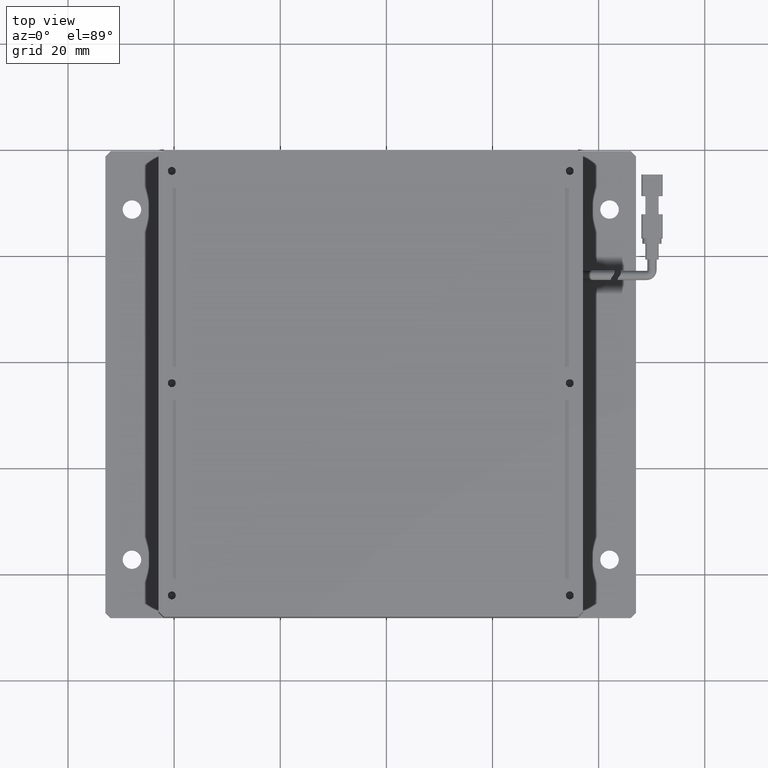
[diagram: clean part render]
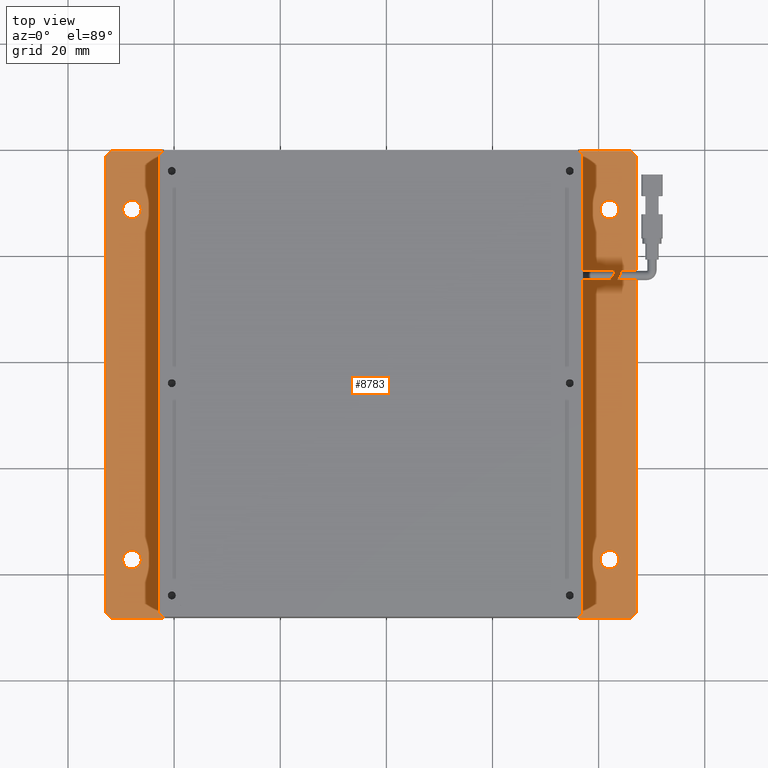
[diagram: same view with one face highlighted and labeled with its STEP entity id]
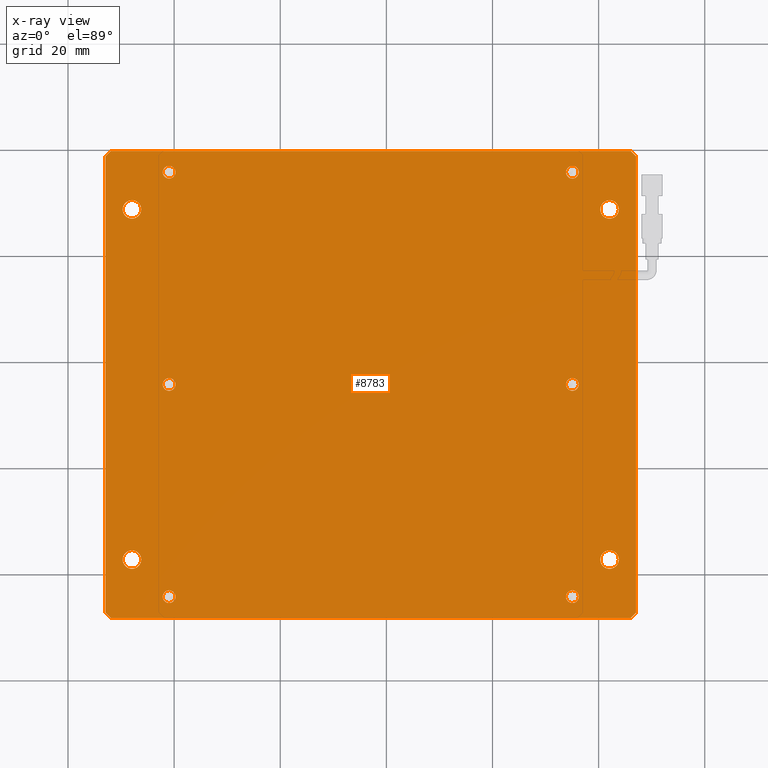
[diagram: x-ray of the same camera — body ghosted, the highlighted face saturated]
A machine part, top view. The second image highlights one B-rep face of the part: STEP entity #8783.
The next image is the same camera in x-ray: the body ghosted, the highlighted face saturated — about 0% of this face is hidden behind the body in this view.
In plain terms, the highlighted planar face has unit normal (0, 0, -1).
Its self-contained STEP definition (entity closure, byte-faithful):
#19 = CARTESIAN_POINT ( 'NONE',  ( -32.94768995799925900, 39.79992363497521500, -4.547577592273199800E-012 ) ) ;
#22 = CARTESIAN_POINT ( 'NONE',  ( 62.05231004200072700, 28.79992363497521500, -4.547577592273199800E-012 ) ) ;
#74 = EDGE_CURVE ( 'NONE', #15469, #9136, #15537, .T. ) ;
#176 = EDGE_CURVE ( 'NONE', #14166, #8460, #12959, .T. ) ;
#235 = EDGE_LOOP ( 'NONE', ( #17595, #10908, #7632, #16304, #5688, #4499, #4505, #15753 ) ) ;
#375 = VERTEX_POINT ( 'NONE', #17222 ) ;
#410 = CARTESIAN_POINT ( 'NONE',  ( 66.05231004200074100, 39.79992363497521500, -4.547577592273199800E-012 ) ) ;
#443 = AXIS2_PLACEMENT_3D ( 'NONE', #6126, #15627, #7523 ) ;
#593 = EDGE_LOOP ( 'NONE', ( #6160, #15576 ) ) ;
#647 = CIRCLE ( 'NONE', #4788, 1.749999999999998000 ) ;
#654 = CARTESIAN_POINT ( 'NONE',  ( -19.74768995799926300, -44.20007636502478500, -4.547577592273199800E-012 ) ) ;
#714 = DIRECTION ( 'NONE',  ( -1.000000000000000000, 0.0000000000000000000, 0.0000000000000000000 ) ) ;
#766 = DIRECTION ( 'NONE',  ( 0.0000000000000000000, 0.0000000000000000000, 1.000000000000000000 ) ) ;
#779 = LINE ( 'NONE', #410, #11408 ) ;
#796 = CARTESIAN_POINT ( 'NONE',  ( 55.05231004200073400, -44.20007636502478500, -4.547577592273199800E-012 ) ) ;
#815 = EDGE_CURVE ( 'NONE', #12420, #8198, #1680, .T. ) ;
#817 = CARTESIAN_POINT ( 'NONE',  ( 53.85231004200074500, -44.20007636502478500, -4.547577592273199800E-012 ) ) ;
#844 = DIRECTION ( 'NONE',  ( -1.000000000000000000, 0.0000000000000000000, -0.0000000000000000000 ) ) ;
#852 = EDGE_LOOP ( 'NONE', ( #1320, #12114 ) ) ;
#909 = VERTEX_POINT ( 'NONE', #7051 ) ;
#982 = CARTESIAN_POINT ( 'NONE',  ( 67.05231004200074100, -47.20007636502479900, -4.547577592273199800E-012 ) ) ;
#1042 = CIRCLE ( 'NONE', #8292, 1.199999999999992600 ) ;
#1134 = LINE ( 'NONE', #2345, #11314 ) ;
#1209 = FACE_BOUND ( 'NONE', #12101, .T. ) ;
#1243 = EDGE_CURVE ( 'NONE', #10454, #2844, #7160, .T. ) ;
#1320 = ORIENTED_EDGE ( 'NONE', *, *, #17116, .F. ) ;
#1324 = AXIS2_PLACEMENT_3D ( 'NONE', #6599, #16094, #7983 ) ;
#1461 = DIRECTION ( 'NONE',  ( -1.000000000000000000, 0.0000000000000000000, 0.0000000000000000000 ) ) ;
#1480 = CARTESIAN_POINT ( 'NONE',  ( -32.94768995799925900, -47.20007636502478500, -4.547577592273199800E-012 ) ) ;
#1637 = FACE_OUTER_BOUND ( 'NONE', #235, .T. ) ;
#1680 = LINE ( 'NONE', #2846, #15859 ) ;
#1691 = DIRECTION ( 'NONE',  ( -1.000000000000000000, 0.0000000000000000000, 0.0000000000000000000 ) ) ;
#1697 = DIRECTION ( 'NONE',  ( -1.000000000000000000, 0.0000000000000000000, 0.0000000000000000000 ) ) ;
#1721 = DIRECTION ( 'NONE',  ( 0.0000000000000000000, 0.0000000000000000000, 1.000000000000000000 ) ) ;
#1747 = DIRECTION ( 'NONE',  ( 0.0000000000000000000, 0.0000000000000000000, 1.000000000000000000 ) ) ;
#1777 = CARTESIAN_POINT ( 'NONE',  ( 55.05231004200073400, -44.20007636502478500, -4.547577592273199800E-012 ) ) ;
#1787 = CARTESIAN_POINT ( 'NONE',  ( -20.94768995799925200, -4.200076365024784800, -4.547577592273199800E-012 ) ) ;
#1899 = AXIS2_PLACEMENT_3D ( 'NONE', #22, #9790, #1461 ) ;
#1965 = AXIS2_PLACEMENT_3D ( 'NONE', #12629, #12564, #12379 ) ;
#2037 = EDGE_CURVE ( 'NONE', #12151, #3938, #10089, .T. ) ;
#2045 = EDGE_CURVE ( 'NONE', #909, #14804, #2699, .T. ) ;
#2056 = FACE_BOUND ( 'NONE', #2821, .T. ) ;
#2100 = VECTOR ( 'NONE', #7319, 1000.000000000000000 ) ;
#2105 = VERTEX_POINT ( 'NONE', #10835 ) ;
#2152 = CARTESIAN_POINT ( 'NONE',  ( 62.05231004200072700, -37.20007636502477100, -4.547577592273199800E-012 ) ) ;
#2183 = ORIENTED_EDGE ( 'NONE', *, *, #2742, .F. ) ;
#2224 = DIRECTION ( 'NONE',  ( 0.7071067811865512400, 0.7071067811865439100, 0.0000000000000000000 ) ) ;
#2282 = AXIS2_PLACEMENT_3D ( 'NONE', #4469, #13993, #5872 ) ;
#2345 = CARTESIAN_POINT ( 'NONE',  ( -32.94768995799925900, -48.20007636502478500, -4.547577592273199800E-012 ) ) ;
#2365 = DIRECTION ( 'NONE',  ( -0.7071067811865622300, -0.7071067811865328100, 0.0000000000000000000 ) ) ;
#2699 = CIRCLE ( 'NONE', #15748, 1.750000000000001600 ) ;
#2742 = EDGE_CURVE ( 'NONE', #12687, #6175, #1042, .T. ) ;
#2810 = DIRECTION ( 'NONE',  ( 0.0000000000000000000, 0.0000000000000000000, 1.000000000000000000 ) ) ;
#2821 = EDGE_LOOP ( 'NONE', ( #3121, #11472 ) ) ;
#2844 = VERTEX_POINT ( 'NONE', #16433 ) ;
#2846 = CARTESIAN_POINT ( 'NONE',  ( -32.94768995799927300, 38.79992363497520800, -4.547577592273199800E-012 ) ) ;
#3041 = DIRECTION ( 'NONE',  ( 0.0000000000000000000, 0.0000000000000000000, 1.000000000000000000 ) ) ;
#3121 = ORIENTED_EDGE ( 'NONE', *, *, #9778, .F. ) ;
#3124 = EDGE_CURVE ( 'NONE', #9136, #15469, #13778, .T. ) ;
#3141 = VERTEX_POINT ( 'NONE', #12322 ) ;
#3271 = CIRCLE ( 'NONE', #11959, 1.199999999999992600 ) ;
#3449 = LINE ( 'NONE', #15352, #6744 ) ;
#3526 = CARTESIAN_POINT ( 'NONE',  ( -27.94768995799929100, -37.20007636502477100, -4.547577592273199800E-012 ) ) ;
#3592 = DIRECTION ( 'NONE',  ( -1.000000000000000000, 0.0000000000000000000, 0.0000000000000000000 ) ) ;
#3597 = EDGE_CURVE ( 'NONE', #3141, #9823, #3449, .T. ) ;
#3670 = CARTESIAN_POINT ( 'NONE',  ( -29.69768995799929100, -37.20007636502477100, -4.547577592273199800E-012 ) ) ;
#3844 = EDGE_CURVE ( 'NONE', #12274, #7485, #11006, .T. ) ;
#3883 = CARTESIAN_POINT ( 'NONE',  ( 62.05231004200072700, -37.20007636502477100, -4.547577592273199800E-012 ) ) ;
#3936 = DIRECTION ( 'NONE',  ( 0.0000000000000000000, 0.0000000000000000000, 1.000000000000000000 ) ) ;
#3938 = VERTEX_POINT ( 'NONE', #16639 ) ;
#3946 = DIRECTION ( 'NONE',  ( 0.0000000000000000000, 0.0000000000000000000, 1.000000000000000000 ) ) ;
#4028 = DIRECTION ( 'NONE',  ( -1.000000000000000000, 0.0000000000000000000, 0.0000000000000000000 ) ) ;
#4031 = DIRECTION ( 'NONE',  ( -1.000000000000000000, 0.0000000000000000000, 0.0000000000000000000 ) ) ;
#4041 = DIRECTION ( 'NONE',  ( 0.0000000000000000000, 0.0000000000000000000, 1.000000000000000000 ) ) ;
#4044 = DIRECTION ( 'NONE',  ( -1.000000000000000000, 0.0000000000000000000, 0.0000000000000000000 ) ) ;
#4095 = CARTESIAN_POINT ( 'NONE',  ( 55.05231004200073400, 35.79992363497522200, -4.547577592273199800E-012 ) ) ;
#4102 = CARTESIAN_POINT ( 'NONE',  ( 55.05231004200073400, -4.200076365024784800, -4.547577592273199800E-012 ) ) ;
#4222 = CARTESIAN_POINT ( 'NONE',  ( -20.94768995799925500, -44.20007636502478500, -4.547577592273199800E-012 ) ) ;
#4289 = ORIENTED_EDGE ( 'NONE', *, *, #3844, .F. ) ;
#4394 = EDGE_LOOP ( 'NONE', ( #17142, #8207 ) ) ;
#4469 = CARTESIAN_POINT ( 'NONE',  ( -32.94768995799925900, 39.79992363497521500, -4.547577592273199800E-012 ) ) ;
#4499 = ORIENTED_EDGE ( 'NONE', *, *, #16909, .F. ) ;
#4505 = ORIENTED_EDGE ( 'NONE', *, *, #7841, .F. ) ;
#4523 = ORIENTED_EDGE ( 'NONE', *, *, #15956, .F. ) ;
#4679 = DIRECTION ( 'NONE',  ( 0.0000000000000000000, 0.0000000000000000000, 1.000000000000000000 ) ) ;
#4788 = AXIS2_PLACEMENT_3D ( 'NONE', #11326, #3041, #12657 ) ;
#4799 = VERTEX_POINT ( 'NONE', #654 ) ;
#4846 = AXIS2_PLACEMENT_3D ( 'NONE', #16105, #7996, #17420 ) ;
#4880 = CARTESIAN_POINT ( 'NONE',  ( 62.05231004200072700, 28.79992363497521500, -4.547577592273199800E-012 ) ) ;
#4905 = EDGE_CURVE ( 'NONE', #9823, #12420, #5884, .T. ) ;
#4962 = FACE_BOUND ( 'NONE', #17777, .T. ) ;
#4963 = DIRECTION ( 'NONE',  ( -1.000000000000000000, 0.0000000000000000000, 0.0000000000000000000 ) ) ;
#5007 = DIRECTION ( 'NONE',  ( 0.0000000000000000000, 0.0000000000000000000, 1.000000000000000000 ) ) ;
#5078 = DIRECTION ( 'NONE',  ( -1.000000000000000000, 0.0000000000000000000, 0.0000000000000000000 ) ) ;
#5122 = ORIENTED_EDGE ( 'NONE', *, *, #2037, .F. ) ;
#5149 = ORIENTED_EDGE ( 'NONE', *, *, #15399, .F. ) ;
#5291 = EDGE_CURVE ( 'NONE', #8460, #14166, #10783, .T. ) ;
#5438 = FACE_BOUND ( 'NONE', #11754, .T. ) ;
#5644 = DIRECTION ( 'NONE',  ( -1.000000000000000000, 0.0000000000000000000, 0.0000000000000000000 ) ) ;
#5688 = ORIENTED_EDGE ( 'NONE', *, *, #3597, .F. ) ;
#5712 = CARTESIAN_POINT ( 'NONE',  ( -32.94768995799925900, 39.79992363497521500, -4.547577592273199800E-012 ) ) ;
#5872 = DIRECTION ( 'NONE',  ( -1.000000000000000000, 0.0000000000000000000, -0.0000000000000000000 ) ) ;
#5884 = LINE ( 'NONE', #19, #2100 ) ;
#5980 = ORIENTED_EDGE ( 'NONE', *, *, #74, .F. ) ;
#6126 = CARTESIAN_POINT ( 'NONE',  ( 55.05231004200073400, -4.200076365024784800, -4.547577592273199800E-012 ) ) ;
#6151 = DIRECTION ( 'NONE',  ( 0.0000000000000000000, 0.0000000000000000000, 1.000000000000000000 ) ) ;
#6160 = ORIENTED_EDGE ( 'NONE', *, *, #5291, .F. ) ;
#6175 = VERTEX_POINT ( 'NONE', #12119 ) ;
#6501 = LINE ( 'NONE', #982, #17291 ) ;
#6599 = CARTESIAN_POINT ( 'NONE',  ( -20.94768995799925500, 35.79992363497520800, -4.547577592273199800E-012 ) ) ;
#6744 = VECTOR ( 'NONE', #14098, 999.9999999999998900 ) ;
#6914 = ORIENTED_EDGE ( 'NONE', *, *, #8286, .F. ) ;
#7007 = EDGE_CURVE ( 'NONE', #8078, #17345, #647, .T. ) ;
#7025 = CARTESIAN_POINT ( 'NONE',  ( -22.14768995799924400, -4.200076365024784800, -4.547577592273199800E-012 ) ) ;
#7051 = CARTESIAN_POINT ( 'NONE',  ( 63.80231004200073400, 28.79992363497521500, -4.547577592273199800E-012 ) ) ;
#7144 = AXIS2_PLACEMENT_3D ( 'NONE', #11121, #2810, #12443 ) ;
#7160 = LINE ( 'NONE', #8245, #10811 ) ;
#7319 = DIRECTION ( 'NONE',  ( 0.0000000000000000000, 1.000000000000000000, 0.0000000000000000000 ) ) ;
#7409 = DIRECTION ( 'NONE',  ( 0.0000000000000000000, 0.0000000000000000000, 1.000000000000000000 ) ) ;
#7415 = DIRECTION ( 'NONE',  ( 0.7071067811865474600, -0.7071067811865474600, 0.0000000000000000000 ) ) ;
#7485 = VERTEX_POINT ( 'NONE', #7025 ) ;
#7523 = DIRECTION ( 'NONE',  ( -1.000000000000000000, 0.0000000000000000000, 0.0000000000000000000 ) ) ;
#7632 = ORIENTED_EDGE ( 'NONE', *, *, #815, .F. ) ;
#7679 = EDGE_CURVE ( 'NONE', #4799, #12470, #13304, .T. ) ;
#7813 = AXIS2_PLACEMENT_3D ( 'NONE', #4095, #4041, #4028 ) ;
#7841 = EDGE_CURVE ( 'NONE', #2844, #2105, #6501, .T. ) ;
#7970 = CARTESIAN_POINT ( 'NONE',  ( 60.30231004200072700, -37.20007636502477100, -4.547577592273199800E-012 ) ) ;
#7983 = DIRECTION ( 'NONE',  ( -1.000000000000000000, 0.0000000000000000000, 0.0000000000000000000 ) ) ;
#7996 = DIRECTION ( 'NONE',  ( 0.0000000000000000000, 0.0000000000000000000, 1.000000000000000000 ) ) ;
#8078 = VERTEX_POINT ( 'NONE', #8291 ) ;
#8139 = CIRCLE ( 'NONE', #7144, 1.199999999999992600 ) ;
#8194 = CARTESIAN_POINT ( 'NONE',  ( 53.85231004200074500, -4.200076365024784800, -4.547577592273199800E-012 ) ) ;
#8198 = VERTEX_POINT ( 'NONE', #8574 ) ;
#8207 = ORIENTED_EDGE ( 'NONE', *, *, #7679, .F. ) ;
#8245 = CARTESIAN_POINT ( 'NONE',  ( 67.05231004200074100, 39.79992363497521500, -4.547577592273199800E-012 ) ) ;
#8286 = EDGE_CURVE ( 'NONE', #7485, #12274, #11216, .T. ) ;
#8291 = CARTESIAN_POINT ( 'NONE',  ( -26.19768995799929500, -37.20007636502477100, -4.547577592273199800E-012 ) ) ;
#8292 = AXIS2_PLACEMENT_3D ( 'NONE', #4102, #3936, #4044 ) ;
#8460 = VERTEX_POINT ( 'NONE', #817 ) ;
#8574 = CARTESIAN_POINT ( 'NONE',  ( -31.94768995799925900, 39.79992363497521500, -4.547577592273199800E-012 ) ) ;
#8611 = FACE_BOUND ( 'NONE', #11075, .T. ) ;
#8658 = VERTEX_POINT ( 'NONE', #10971 ) ;
#8783 = ADVANCED_FACE ( 'NONE', ( #1637, #5438, #12635, #2056, #15812, #12210, #8611, #4962, #1209, #15385, #11788 ), #12569, .F. ) ;
#9136 = VERTEX_POINT ( 'NONE', #13438 ) ;
#9248 = EDGE_CURVE ( 'NONE', #8198, #10737, #12597, .T. ) ;
#9452 = VECTOR ( 'NONE', #11150, 1000.000000000000000 ) ;
#9778 = EDGE_CURVE ( 'NONE', #13548, #8658, #8139, .T. ) ;
#9790 = DIRECTION ( 'NONE',  ( 0.0000000000000000000, 0.0000000000000000000, 1.000000000000000000 ) ) ;
#9821 = CIRCLE ( 'NONE', #1899, 1.750000000000001600 ) ;
#9823 = VERTEX_POINT ( 'NONE', #1480 ) ;
#10089 = CIRCLE ( 'NONE', #13931, 1.750000000000001600 ) ;
#10124 = CIRCLE ( 'NONE', #16903, 1.750000000000001600 ) ;
#10382 = CARTESIAN_POINT ( 'NONE',  ( -22.14768995799924800, -44.20007636502478500, -4.547577592273199800E-012 ) ) ;
#10454 = VERTEX_POINT ( 'NONE', #11597 ) ;
#10497 = ORIENTED_EDGE ( 'NONE', *, *, #14025, .F. ) ;
#10580 = EDGE_CURVE ( 'NONE', #8658, #13548, #15970, .T. ) ;
#10641 = CARTESIAN_POINT ( 'NONE',  ( 60.30231004200072700, 28.79992363497521500, -4.547577592273199800E-012 ) ) ;
#10685 = VERTEX_POINT ( 'NONE', #13663 ) ;
#10737 = VERTEX_POINT ( 'NONE', #17755 ) ;
#10783 = CIRCLE ( 'NONE', #15318, 1.199999999999992600 ) ;
#10811 = VECTOR ( 'NONE', #14833, 1000.000000000000000 ) ;
#10835 = CARTESIAN_POINT ( 'NONE',  ( 66.05231004200074100, -48.20007636502478500, -4.547577592273199800E-012 ) ) ;
#10908 = ORIENTED_EDGE ( 'NONE', *, *, #9248, .F. ) ;
#10971 = CARTESIAN_POINT ( 'NONE',  ( -19.74768995799926300, 35.79992363497520800, -4.547577592273199800E-012 ) ) ;
#11006 = CIRCLE ( 'NONE', #15293, 1.199999999999992600 ) ;
#11075 = EDGE_LOOP ( 'NONE', ( #5980, #16626 ) ) ;
#11121 = CARTESIAN_POINT ( 'NONE',  ( -20.94768995799925500, 35.79992363497520800, -4.547577592273199800E-012 ) ) ;
#11142 = EDGE_CURVE ( 'NONE', #12470, #4799, #3271, .T. ) ;
#11150 = DIRECTION ( 'NONE',  ( 1.000000000000000000, -0.0000000000000000000, 0.0000000000000000000 ) ) ;
#11216 = CIRCLE ( 'NONE', #12875, 1.199999999999992600 ) ;
#11314 = VECTOR ( 'NONE', #844, 1000.000000000000000 ) ;
#11326 = CARTESIAN_POINT ( 'NONE',  ( -27.94768995799929100, -37.20007636502477100, -4.547577592273199800E-012 ) ) ;
#11408 = VECTOR ( 'NONE', #7415, 1000.000000000000100 ) ;
#11472 = ORIENTED_EDGE ( 'NONE', *, *, #10580, .F. ) ;
#11597 = CARTESIAN_POINT ( 'NONE',  ( 67.05231004200074100, 38.79992363497520800, -4.547577592273199800E-012 ) ) ;
#11716 = CIRCLE ( 'NONE', #11797, 1.749999999999998000 ) ;
#11754 = EDGE_LOOP ( 'NONE', ( #6914, #4289 ) ) ;
#11788 = FACE_BOUND ( 'NONE', #852, .T. ) ;
#11797 = AXIS2_PLACEMENT_3D ( 'NONE', #3526, #13090, #4963 ) ;
#11820 = DIRECTION ( 'NONE',  ( 0.0000000000000000000, 0.0000000000000000000, 1.000000000000000000 ) ) ;
#11959 = AXIS2_PLACEMENT_3D ( 'NONE', #4222, #13761, #5644 ) ;
#12101 = EDGE_LOOP ( 'NONE', ( #5149, #10497 ) ) ;
#12114 = ORIENTED_EDGE ( 'NONE', *, *, #2045, .F. ) ;
#12119 = CARTESIAN_POINT ( 'NONE',  ( 56.25231004200073000, -4.200076365024784800, -4.547577592273199800E-012 ) ) ;
#12139 = CARTESIAN_POINT ( 'NONE',  ( 53.85231004200074500, 35.79992363497522200, -4.547577592273199800E-012 ) ) ;
#12151 = VERTEX_POINT ( 'NONE', #7970 ) ;
#12210 = FACE_BOUND ( 'NONE', #593, .T. ) ;
#12274 = VERTEX_POINT ( 'NONE', #17684 ) ;
#12322 = CARTESIAN_POINT ( 'NONE',  ( -31.94768995799927300, -48.20007636502478500, -4.547577592273199800E-012 ) ) ;
#12379 = DIRECTION ( 'NONE',  ( -1.000000000000000000, 0.0000000000000000000, 0.0000000000000000000 ) ) ;
#12383 = EDGE_CURVE ( 'NONE', #10737, #10454, #779, .T. ) ;
#12420 = VERTEX_POINT ( 'NONE', #12833 ) ;
#12443 = DIRECTION ( 'NONE',  ( -1.000000000000000000, 0.0000000000000000000, 0.0000000000000000000 ) ) ;
#12465 = AXIS2_PLACEMENT_3D ( 'NONE', #15528, #7409, #16867 ) ;
#12470 = VERTEX_POINT ( 'NONE', #10382 ) ;
#12564 = DIRECTION ( 'NONE',  ( 0.0000000000000000000, 0.0000000000000000000, 1.000000000000000000 ) ) ;
#12569 = PLANE ( 'NONE',  #2282 ) ;
#12597 = LINE ( 'NONE', #5712, #9452 ) ;
#12629 = CARTESIAN_POINT ( 'NONE',  ( 55.05231004200073400, 35.79992363497522200, -4.547577592273199800E-012 ) ) ;
#12635 = FACE_BOUND ( 'NONE', #4394, .T. ) ;
#12657 = DIRECTION ( 'NONE',  ( -1.000000000000000000, 0.0000000000000000000, 0.0000000000000000000 ) ) ;
#12687 = VERTEX_POINT ( 'NONE', #8194 ) ;
#12806 = CARTESIAN_POINT ( 'NONE',  ( -20.94768995799925200, -4.200076365024784800, -4.547577592273199800E-012 ) ) ;
#12833 = CARTESIAN_POINT ( 'NONE',  ( -32.94768995799926600, 38.79992363497523700, -4.547577592273199800E-012 ) ) ;
#12875 = AXIS2_PLACEMENT_3D ( 'NONE', #12806, #4679, #14184 ) ;
#12959 = CIRCLE ( 'NONE', #15072, 1.199999999999992600 ) ;
#13030 = CARTESIAN_POINT ( 'NONE',  ( -22.14768995799924800, 35.79992363497520800, -4.547577592273199800E-012 ) ) ;
#13090 = DIRECTION ( 'NONE',  ( 0.0000000000000000000, 0.0000000000000000000, 1.000000000000000000 ) ) ;
#13304 = CIRCLE ( 'NONE', #14375, 1.199999999999992600 ) ;
#13438 = CARTESIAN_POINT ( 'NONE',  ( 56.25231004200073000, 35.79992363497522200, -4.547577592273199800E-012 ) ) ;
#13548 = VERTEX_POINT ( 'NONE', #13030 ) ;
#13663 = CARTESIAN_POINT ( 'NONE',  ( -29.69768995799926600, 28.79992363497522900, -4.547577592273199800E-012 ) ) ;
#13761 = DIRECTION ( 'NONE',  ( 0.0000000000000000000, 0.0000000000000000000, 1.000000000000000000 ) ) ;
#13778 = CIRCLE ( 'NONE', #1965, 1.199999999999992600 ) ;
#13846 = ORIENTED_EDGE ( 'NONE', *, *, #7007, .F. ) ;
#13931 = AXIS2_PLACEMENT_3D ( 'NONE', #3883, #3946, #4031 ) ;
#13993 = DIRECTION ( 'NONE',  ( 0.0000000000000000000, 0.0000000000000000000, -1.000000000000000000 ) ) ;
#14025 = EDGE_CURVE ( 'NONE', #375, #10685, #14678, .T. ) ;
#14098 = DIRECTION ( 'NONE',  ( -0.7071067811865424700, 0.7071067811865526800, 0.0000000000000000000 ) ) ;
#14166 = VERTEX_POINT ( 'NONE', #14557 ) ;
#14177 = CIRCLE ( 'NONE', #443, 1.199999999999992600 ) ;
#14184 = DIRECTION ( 'NONE',  ( -1.000000000000000000, 0.0000000000000000000, 0.0000000000000000000 ) ) ;
#14283 = CARTESIAN_POINT ( 'NONE',  ( -20.94768995799925500, -44.20007636502478500, -4.547577592273199800E-012 ) ) ;
#14371 = EDGE_CURVE ( 'NONE', #17345, #8078, #11716, .T. ) ;
#14375 = AXIS2_PLACEMENT_3D ( 'NONE', #14283, #6151, #15655 ) ;
#14557 = CARTESIAN_POINT ( 'NONE',  ( 56.25231004200073000, -44.20007636502478500, -4.547577592273199800E-012 ) ) ;
#14581 = CIRCLE ( 'NONE', #4846, 1.749999999999998000 ) ;
#14678 = CIRCLE ( 'NONE', #12465, 1.749999999999998000 ) ;
#14804 = VERTEX_POINT ( 'NONE', #10641 ) ;
#14833 = DIRECTION ( 'NONE',  ( -0.0000000000000000000, -1.000000000000000000, -0.0000000000000000000 ) ) ;
#15072 = AXIS2_PLACEMENT_3D ( 'NONE', #1777, #1747, #1697 ) ;
#15202 = EDGE_CURVE ( 'NONE', #6175, #12687, #14177, .T. ) ;
#15267 = EDGE_LOOP ( 'NONE', ( #5122, #4523 ) ) ;
#15293 = AXIS2_PLACEMENT_3D ( 'NONE', #1787, #1721, #1691 ) ;
#15318 = AXIS2_PLACEMENT_3D ( 'NONE', #796, #766, #714 ) ;
#15352 = CARTESIAN_POINT ( 'NONE',  ( -31.94768995799927300, -48.20007636502478500, -4.547577592273199800E-012 ) ) ;
#15385 = FACE_BOUND ( 'NONE', #15267, .T. ) ;
#15399 = EDGE_CURVE ( 'NONE', #10685, #375, #14581, .T. ) ;
#15469 = VERTEX_POINT ( 'NONE', #12139 ) ;
#15528 = CARTESIAN_POINT ( 'NONE',  ( -27.94768995799927000, 28.79992363497522900, -4.547577592273199800E-012 ) ) ;
#15537 = CIRCLE ( 'NONE', #7813, 1.199999999999992600 ) ;
#15576 = ORIENTED_EDGE ( 'NONE', *, *, #176, .F. ) ;
#15627 = DIRECTION ( 'NONE',  ( 0.0000000000000000000, 0.0000000000000000000, 1.000000000000000000 ) ) ;
#15655 = DIRECTION ( 'NONE',  ( -1.000000000000000000, 0.0000000000000000000, 0.0000000000000000000 ) ) ;
#15748 = AXIS2_PLACEMENT_3D ( 'NONE', #4880, #5007, #5078 ) ;
#15753 = ORIENTED_EDGE ( 'NONE', *, *, #1243, .F. ) ;
#15812 = FACE_BOUND ( 'NONE', #17200, .T. ) ;
#15859 = VECTOR ( 'NONE', #2224, 1000.000000000000000 ) ;
#15956 = EDGE_CURVE ( 'NONE', #3938, #12151, #10124, .T. ) ;
#15970 = CIRCLE ( 'NONE', #1324, 1.199999999999992600 ) ;
#16094 = DIRECTION ( 'NONE',  ( 0.0000000000000000000, 0.0000000000000000000, 1.000000000000000000 ) ) ;
#16105 = CARTESIAN_POINT ( 'NONE',  ( -27.94768995799927000, 28.79992363497522900, -4.547577592273199800E-012 ) ) ;
#16304 = ORIENTED_EDGE ( 'NONE', *, *, #4905, .F. ) ;
#16433 = CARTESIAN_POINT ( 'NONE',  ( 67.05231004200074100, -47.20007636502479900, -4.547577592273199800E-012 ) ) ;
#16500 = ORIENTED_EDGE ( 'NONE', *, *, #15202, .F. ) ;
#16626 = ORIENTED_EDGE ( 'NONE', *, *, #3124, .F. ) ;
#16639 = CARTESIAN_POINT ( 'NONE',  ( 63.80231004200073400, -37.20007636502477100, -4.547577592273199800E-012 ) ) ;
#16867 = DIRECTION ( 'NONE',  ( -1.000000000000000000, 0.0000000000000000000, 0.0000000000000000000 ) ) ;
#16903 = AXIS2_PLACEMENT_3D ( 'NONE', #2152, #11820, #3592 ) ;
#16909 = EDGE_CURVE ( 'NONE', #2105, #3141, #1134, .T. ) ;
#17022 = ORIENTED_EDGE ( 'NONE', *, *, #14371, .F. ) ;
#17116 = EDGE_CURVE ( 'NONE', #14804, #909, #9821, .T. ) ;
#17142 = ORIENTED_EDGE ( 'NONE', *, *, #11142, .F. ) ;
#17200 = EDGE_LOOP ( 'NONE', ( #2183, #16500 ) ) ;
#17222 = CARTESIAN_POINT ( 'NONE',  ( -26.19768995799927000, 28.79992363497522900, -4.547577592273199800E-012 ) ) ;
#17291 = VECTOR ( 'NONE', #2365, 1000.000000000000000 ) ;
#17345 = VERTEX_POINT ( 'NONE', #3670 ) ;
#17420 = DIRECTION ( 'NONE',  ( -1.000000000000000000, 0.0000000000000000000, 0.0000000000000000000 ) ) ;
#17595 = ORIENTED_EDGE ( 'NONE', *, *, #12383, .F. ) ;
#17684 = CARTESIAN_POINT ( 'NONE',  ( -19.74768995799926000, -4.200076365024784800, -4.547577592273199800E-012 ) ) ;
#17755 = CARTESIAN_POINT ( 'NONE',  ( 66.05231004200076900, 39.79992363497521500, -4.547577592273199800E-012 ) ) ;
#17777 = EDGE_LOOP ( 'NONE', ( #17022, #13846 ) ) ;